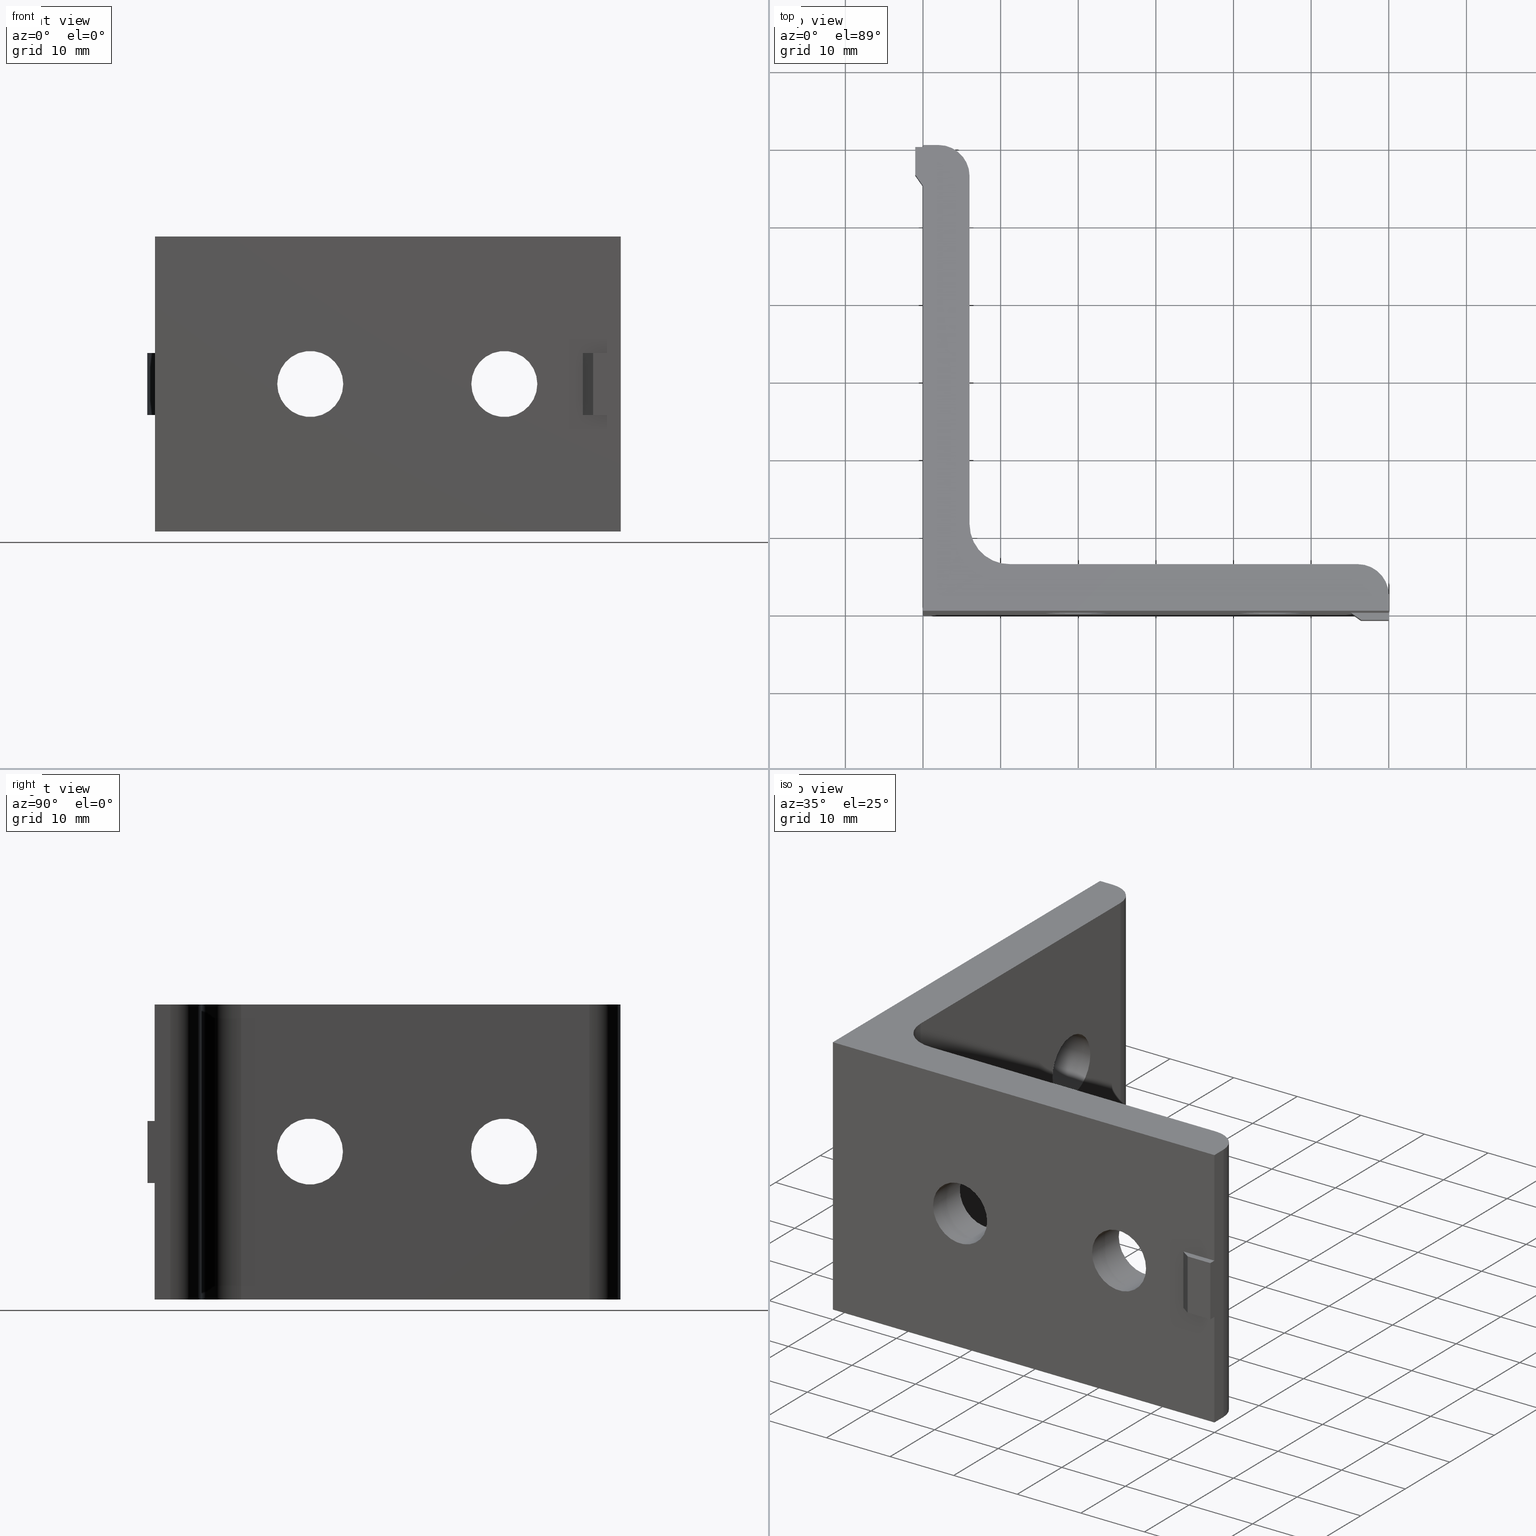
[diagram: canonical four-view strip — front | top / right | iso, engineering-drawing reading convention]
A machine part, canonical four-view strip (front | top / right | iso — engineering-drawing reading convention). The complete STEP part file that produces these views, byte-faithful:
ISO-10303-21;
HEADER;
/****************************************************************
 * Generated by software with PDE/Lib inside                    *
 * PDElib Version v4.4, created Mon 02/23/2004                  *
 * International Technegroup Inc. (www.iti-oh.com)              *
 ****************************************************************/
FILE_DESCRIPTION(('STEP AP203'),'2;1');
FILE_NAME('30.013.00.stp','2011-03-21T16:13:56',(''),(''),'2009.3.110','THINKDESIGN','');
FILE_SCHEMA(('CONFIG_CONTROL_DESIGN'));
ENDSEC;
DATA;
#2=CARTESIAN_POINT('',(55.111601995001365,0.0,-18.999991966924856));
#3=DIRECTION('',(-0.572230295034357,-0.820092976097767,0.0));
#4=DIRECTION('',(0.820092976097767,-0.572230295034357,0.0));
#5=AXIS2_PLACEMENT_3D('',#2,#3,#4);
#6=PLANE('',#5);
#7=CARTESIAN_POINT('',(55.111601995001365,0.0,-3.999991966924856));
#8=VERTEX_POINT('',#7);
#9=CARTESIAN_POINT('',(55.111601995001365,0.0,3.999991966924856));
#10=VERTEX_POINT('',#9);
#11=CARTESIAN_POINT('',(55.111601995001365,0.0,-3.999991966924856));
#12=DIRECTION('',(0.0,0.0,1.0));
#13=VECTOR('',#12,7.999983933849713);
#14=LINE('',#11,#13);
#15=EDGE_CURVE('',#8,#10,#14,.T.);
#16=ORIENTED_EDGE('',*,*,#15,.F.);
#17=CARTESIAN_POINT('',(56.433131091612267,-0.922113719896061,-3.999991966924856));
#18=VERTEX_POINT('',#17);
#19=CARTESIAN_POINT('',(55.111601995001365,0.0,-3.999991966924856));
#20=DIRECTION('',(0.820092976097767,-0.572230295034357,0.0));
#21=VECTOR('',#20,1.611438135830779);
#22=LINE('',#19,#21);
#23=EDGE_CURVE('',#8,#18,#22,.T.);
#24=ORIENTED_EDGE('',*,*,#23,.T.);
#25=CARTESIAN_POINT('',(56.433131091612267,-0.922113719896061,3.999991966924856));
#26=VERTEX_POINT('',#25);
#27=CARTESIAN_POINT('',(56.433131091612267,-0.922113719896061,-3.999991966924856));
#28=DIRECTION('',(0.0,0.0,1.0));
#29=VECTOR('',#28,7.999983933849713);
#30=LINE('',#27,#29);
#31=EDGE_CURVE('',#18,#26,#30,.T.);
#32=ORIENTED_EDGE('',*,*,#31,.T.);
#33=CARTESIAN_POINT('',(55.111601995001365,0.0,3.999991966924856));
#34=DIRECTION('',(0.820092976097767,-0.572230295034357,0.0));
#35=VECTOR('',#34,1.611438135830779);
#36=LINE('',#33,#35);
#37=EDGE_CURVE('',#10,#26,#36,.T.);
#38=ORIENTED_EDGE('',*,*,#37,.F.);
#39=EDGE_LOOP('',(#16,#24,#32,#38));
#40=FACE_OUTER_BOUND('',#39,.T.);
#41=ADVANCED_FACE('',(#40),#6,.T.);
#42=CARTESIAN_POINT('',(56.433131091612267,-0.922113719896061,-18.999991966924856));
#43=DIRECTION('',(0.0,-1.0,0.0));
#44=DIRECTION('',(1.0,0.0,0.0));
#45=AXIS2_PLACEMENT_3D('',#42,#43,#44);
#46=PLANE('',#45);
#47=ORIENTED_EDGE('',*,*,#31,.F.);
#48=CARTESIAN_POINT('',(59.999989242192896,-0.922113719896061,-3.999991966924856));
#49=VERTEX_POINT('',#48);
#50=CARTESIAN_POINT('',(56.433131091612267,-0.922113719896061,-3.999991966924856));
#51=DIRECTION('',(1.0,0.0,0.0));
#52=VECTOR('',#51,3.566858150580629);
#53=LINE('',#50,#52);
#54=EDGE_CURVE('',#18,#49,#53,.T.);
#55=ORIENTED_EDGE('',*,*,#54,.T.);
#56=CARTESIAN_POINT('',(59.999989242192896,-0.922113719896061,3.999991966924856));
#57=VERTEX_POINT('',#56);
#58=CARTESIAN_POINT('',(59.999989242192896,-0.922113719896061,-3.999991966924856));
#59=DIRECTION('',(0.0,0.0,1.0));
#60=VECTOR('',#59,7.999983933849713);
#61=LINE('',#58,#60);
#62=EDGE_CURVE('',#49,#57,#61,.T.);
#63=ORIENTED_EDGE('',*,*,#62,.T.);
#64=CARTESIAN_POINT('',(56.433131091612267,-0.922113719896061,3.999991966924856));
#65=DIRECTION('',(1.0,0.0,0.0));
#66=VECTOR('',#65,3.566858150580629);
#67=LINE('',#64,#66);
#68=EDGE_CURVE('',#26,#57,#67,.T.);
#69=ORIENTED_EDGE('',*,*,#68,.F.);
#70=EDGE_LOOP('',(#47,#55,#63,#69));
#71=FACE_OUTER_BOUND('',#70,.T.);
#72=ADVANCED_FACE('',(#71),#46,.T.);
#73=CARTESIAN_POINT('',(59.999989242192896,-0.922113719896061,-18.999991966924856));
#74=DIRECTION('',(1.0,-1.556227E-013,0.0));
#75=DIRECTION('',(1.556227E-013,1.0,0.0));
#76=AXIS2_PLACEMENT_3D('',#73,#74,#75);
#77=PLANE('',#76);
#78=CARTESIAN_POINT('',(59.999989242193351,2.000001343853455,-18.999991966924856));
#79=VERTEX_POINT('',#78);
#80=CARTESIAN_POINT('',(59.999989242193351,2.000001343853455,18.999991966924856));
#81=VERTEX_POINT('',#80);
#82=CARTESIAN_POINT('',(59.999989242193351,2.000001343853455,-18.999991966924856));
#83=DIRECTION('',(0.0,0.0,1.0));
#84=VECTOR('',#83,37.999983933849713);
#85=LINE('',#82,#84);
#86=EDGE_CURVE('',#79,#81,#85,.T.);
#87=ORIENTED_EDGE('',*,*,#86,.T.);
#88=CARTESIAN_POINT('',(59.999989242192896,0.0,18.999991966924856));
#89=VERTEX_POINT('',#88);
#90=CARTESIAN_POINT('',(59.999989242193038,0.0,18.999991966924856));
#91=DIRECTION('',(1.563193E-013,1.0,0.0));
#92=VECTOR('',#91,2.000001343853455);
#93=LINE('',#90,#92);
#94=EDGE_CURVE('',#89,#81,#93,.T.);
#95=ORIENTED_EDGE('',*,*,#94,.F.);
#96=CARTESIAN_POINT('',(59.999989242193351,0.0,3.999991966924856));
#97=VERTEX_POINT('',#96);
#98=CARTESIAN_POINT('',(59.999989242192896,0.0,18.999991966924856));
#99=DIRECTION('',(0.0,0.0,-1.0));
#100=VECTOR('',#99,15.0);
#101=LINE('',#98,#100);
#102=EDGE_CURVE('',#89,#97,#101,.T.);
#103=ORIENTED_EDGE('',*,*,#102,.T.);
#104=CARTESIAN_POINT('',(59.999989242192896,-0.922113719896061,3.999991966924856));
#105=DIRECTION('',(4.931576E-013,1.0,0.0));
#106=VECTOR('',#105,0.922113719896061);
#107=LINE('',#104,#106);
#108=EDGE_CURVE('',#57,#97,#107,.T.);
#109=ORIENTED_EDGE('',*,*,#108,.F.);
#110=ORIENTED_EDGE('',*,*,#62,.F.);
#111=CARTESIAN_POINT('',(59.999989242193351,0.0,-3.999991966924856));
#112=VERTEX_POINT('',#111);
#113=CARTESIAN_POINT('',(59.999989242192896,-0.922113719896061,-3.999991966924856));
#114=DIRECTION('',(4.931576E-013,1.0,0.0));
#115=VECTOR('',#114,0.922113719896061);
#116=LINE('',#113,#115);
#117=EDGE_CURVE('',#49,#112,#116,.T.);
#118=ORIENTED_EDGE('',*,*,#117,.T.);
#119=CARTESIAN_POINT('',(59.999989242192896,0.0,-18.999991966924856));
#120=VERTEX_POINT('',#119);
#121=CARTESIAN_POINT('',(59.999989242192896,0.0,-18.999991966924856));
#122=DIRECTION('',(0.0,0.0,1.0));
#123=VECTOR('',#122,15.0);
#124=LINE('',#121,#123);
#125=EDGE_CURVE('',#120,#112,#124,.T.);
#126=ORIENTED_EDGE('',*,*,#125,.F.);
#127=CARTESIAN_POINT('',(59.999989242193038,0.0,-18.999991966924856));
#128=DIRECTION('',(1.563193E-013,1.0,0.0));
#129=VECTOR('',#128,2.000001343853455);
#130=LINE('',#127,#129);
#131=EDGE_CURVE('',#120,#79,#130,.T.);
#132=ORIENTED_EDGE('',*,*,#131,.T.);
#133=EDGE_LOOP('',(#87,#95,#103,#109,#110,#118,#126,#132));
#134=FACE_OUTER_BOUND('',#133,.T.);
#135=ADVANCED_FACE('',(#134),#77,.T.);
#136=CARTESIAN_POINT('',(55.999990130163496,2.000001343853455,-18.999991966924856));
#137=DIRECTION('',(0.0,0.0,1.0));
#138=DIRECTION('',(1.0,0.0,0.0));
#139=AXIS2_PLACEMENT_3D('',#136,#137,#138);
#140=CYLINDRICAL_SURFACE('',#139,3.999999112029855);
#141=CARTESIAN_POINT('',(55.999990130153947,6.000000455882855,-18.999991966924856));
#142=VERTEX_POINT('',#141);
#143=CARTESIAN_POINT('',(55.999990130163496,2.000001343853455,-18.999991966924856));
#144=DIRECTION('',(0.0,0.0,1.0));
#145=DIRECTION('',(1.0,0.0,0.0));
#146=AXIS2_PLACEMENT_3D('',#143,#144,#145);
#147=CIRCLE('',#146,3.999999112029855);
#148=EDGE_CURVE('',#79,#142,#147,.T.);
#149=ORIENTED_EDGE('',*,*,#148,.T.);
#150=CARTESIAN_POINT('',(55.999990130153947,6.000000455882855,18.999991966924856));
#151=VERTEX_POINT('',#150);
#152=CARTESIAN_POINT('',(55.999990130153947,6.000000455882855,-18.999991966924856));
#153=DIRECTION('',(0.0,0.0,1.0));
#154=VECTOR('',#153,37.999983933849713);
#155=LINE('',#152,#154);
#156=EDGE_CURVE('',#142,#151,#155,.T.);
#157=ORIENTED_EDGE('',*,*,#156,.T.);
#158=CARTESIAN_POINT('',(55.999990130163496,2.000001343853455,18.999991966924856));
#159=DIRECTION('',(0.0,0.0,1.0));
#160=DIRECTION('',(1.0,0.0,0.0));
#161=AXIS2_PLACEMENT_3D('',#158,#159,#160);
#162=CIRCLE('',#161,3.999999112029855);
#163=EDGE_CURVE('',#81,#151,#162,.T.);
#164=ORIENTED_EDGE('',*,*,#163,.F.);
#165=ORIENTED_EDGE('',*,*,#86,.F.);
#166=EDGE_LOOP('',(#149,#157,#164,#165));
#167=FACE_OUTER_BOUND('',#166,.T.);
#168=ADVANCED_FACE('',(#167),#140,.T.);
#169=CARTESIAN_POINT('',(55.999990130153947,6.000000455882855,-18.999991966924856));
#170=DIRECTION('',(0.0,1.0,0.0));
#171=DIRECTION('',(-1.0,0.0,0.0));
#172=AXIS2_PLACEMENT_3D('',#169,#170,#171);
#173=PLANE('',#172);
#174=CARTESIAN_POINT('',(11.266897509197861,6.000000455882855,-18.999991966924856));
#175=VERTEX_POINT('',#174);
#176=CARTESIAN_POINT('',(55.999990130153947,6.000000455882855,-18.999991966924856));
#177=DIRECTION('',(-1.0,0.0,0.0));
#178=VECTOR('',#177,44.733092620956299);
#179=LINE('',#176,#178);
#180=EDGE_CURVE('',#142,#175,#179,.T.);
#181=ORIENTED_EDGE('',*,*,#180,.T.);
#182=CARTESIAN_POINT('',(11.266897509197861,6.000000455882855,18.999991966924856));
#183=VERTEX_POINT('',#182);
#184=CARTESIAN_POINT('',(11.266897509197861,6.000000455882855,-18.999991966924856));
#185=DIRECTION('',(0.0,0.0,1.0));
#186=VECTOR('',#185,37.999983933849713);
#187=LINE('',#184,#186);
#188=EDGE_CURVE('',#175,#183,#187,.T.);
#189=ORIENTED_EDGE('',*,*,#188,.T.);
#190=CARTESIAN_POINT('',(55.999990130153947,6.000000455882855,18.999991966924856));
#191=DIRECTION('',(-1.0,0.0,0.0));
#192=VECTOR('',#191,44.733092620956299);
#193=LINE('',#190,#192);
#194=EDGE_CURVE('',#151,#183,#193,.T.);
#195=ORIENTED_EDGE('',*,*,#194,.F.);
#196=ORIENTED_EDGE('',*,*,#156,.F.);
#197=EDGE_LOOP('',(#181,#189,#195,#196));
#198=FACE_OUTER_BOUND('',#197,.T.);
#199=CARTESIAN_POINT('',(24.250006695034244,6.000000455882855,0.000003814999193));
#200=VERTEX_POINT('',#199);
#201=CARTESIAN_POINT('',(15.750012449666428,6.000000455882855,0.000003814999193));
#202=VERTEX_POINT('',#201);
#203=CARTESIAN_POINT('',(20.000009572350336,6.000000455882855,0.000003814999193));
#204=DIRECTION('',(0.0,-1.0,0.0));
#205=DIRECTION('',(1.0,0.0,0.0));
#206=AXIS2_PLACEMENT_3D('',#203,#204,#205);
#207=CIRCLE('',#206,4.249997122683908);
#208=EDGE_CURVE('',#200,#202,#207,.T.);
#209=ORIENTED_EDGE('',*,*,#208,.T.);
#210=CARTESIAN_POINT('',(20.000009572350336,6.000000455882855,0.000003814999193));
#211=DIRECTION('',(0.0,-1.0,0.0));
#212=DIRECTION('',(1.0,0.0,0.0));
#213=AXIS2_PLACEMENT_3D('',#210,#211,#212);
#214=CIRCLE('',#213,4.249997122683908);
#215=EDGE_CURVE('',#202,#200,#214,.T.);
#216=ORIENTED_EDGE('',*,*,#215,.T.);
#217=EDGE_LOOP('',(#209,#216));
#218=FACE_BOUND('',#217,.T.);
#219=CARTESIAN_POINT('',(49.249999234934421,6.000000455882855,0.000003814999193));
#220=VERTEX_POINT('',#219);
#221=CARTESIAN_POINT('',(40.750004989566605,6.000000455882855,0.000003814999193));
#222=VERTEX_POINT('',#221);
#223=CARTESIAN_POINT('',(45.000002112250513,6.000000455882855,0.000003814999193));
#224=DIRECTION('',(0.0,-1.0,0.0));
#225=DIRECTION('',(1.0,0.0,0.0));
#226=AXIS2_PLACEMENT_3D('',#223,#224,#225);
#227=CIRCLE('',#226,4.249997122683908);
#228=EDGE_CURVE('',#220,#222,#227,.T.);
#229=ORIENTED_EDGE('',*,*,#228,.T.);
#230=CARTESIAN_POINT('',(45.000002112250513,6.000000455882855,0.000003814999193));
#231=DIRECTION('',(0.0,-1.0,0.0));
#232=DIRECTION('',(1.0,0.0,0.0));
#233=AXIS2_PLACEMENT_3D('',#230,#231,#232);
#234=CIRCLE('',#233,4.249997122683908);
#235=EDGE_CURVE('',#222,#220,#234,.T.);
#236=ORIENTED_EDGE('',*,*,#235,.T.);
#237=EDGE_LOOP('',(#229,#236));
#238=FACE_BOUND('',#237,.T.);
#239=ADVANCED_FACE('',(#198,#218,#238),#173,.T.);
#240=CARTESIAN_POINT('',(11.133448814766780,11.131713186279285,-18.999991966924856));
#241=DIRECTION('',(0.0,0.0,-1.0));
#242=DIRECTION('',(0.025995920331921,-0.999662048957595,0.0));
#243=AXIS2_PLACEMENT_3D('',#240,#241,#242);
#244=CYLINDRICAL_SURFACE('',#243,5.133447584358692);
#245=CARTESIAN_POINT('',(6.000001230408088,11.131713186279285,-18.999991966924856));
#246=VERTEX_POINT('',#245);
#247=CARTESIAN_POINT('',(11.133448814766780,11.131713186279285,-18.999991966924856));
#248=DIRECTION('',(0.0,0.0,-1.0));
#249=DIRECTION('',(-1.0,0.0,0.0));
#250=AXIS2_PLACEMENT_3D('',#247,#248,#249);
#251=CIRCLE('',#250,5.133447584358692);
#252=EDGE_CURVE('',#175,#246,#251,.T.);
#253=ORIENTED_EDGE('',*,*,#252,.T.);
#254=CARTESIAN_POINT('',(6.000001230408088,11.131713186279285,18.999991966924856));
#255=VERTEX_POINT('',#254);
#256=CARTESIAN_POINT('',(6.000001230408088,11.131713186279285,-18.999991966924856));
#257=DIRECTION('',(0.0,0.0,1.0));
#258=VECTOR('',#257,37.999983933849713);
#259=LINE('',#256,#258);
#260=EDGE_CURVE('',#246,#255,#259,.T.);
#261=ORIENTED_EDGE('',*,*,#260,.T.);
#262=CARTESIAN_POINT('',(11.133448814766780,11.131713186279285,18.999991966924856));
#263=DIRECTION('',(0.0,0.0,-1.0));
#264=DIRECTION('',(-1.0,0.0,0.0));
#265=AXIS2_PLACEMENT_3D('',#262,#263,#264);
#266=CIRCLE('',#265,5.133447584358692);
#267=EDGE_CURVE('',#183,#255,#266,.T.);
#268=ORIENTED_EDGE('',*,*,#267,.F.);
#269=ORIENTED_EDGE('',*,*,#188,.F.);
#270=EDGE_LOOP('',(#253,#261,#268,#269));
#271=FACE_OUTER_BOUND('',#270,.T.);
#272=ADVANCED_FACE('',(#271),#244,.F.);
#273=CARTESIAN_POINT('',(6.000001230408088,11.131713186279285,-18.999991966924856));
#274=DIRECTION('',(1.0,0.0,0.0));
#275=DIRECTION('',(0.0,1.0,0.0));
#276=AXIS2_PLACEMENT_3D('',#273,#274,#275);
#277=PLANE('',#276);
#278=CARTESIAN_POINT('',(6.000001230408543,55.999989355737398,-18.999991966924856));
#279=VERTEX_POINT('',#278);
#280=CARTESIAN_POINT('',(6.000001230408088,11.131713186279285,-18.999991966924856));
#281=DIRECTION('',(0.0,1.0,0.0));
#282=VECTOR('',#281,44.868276169458113);
#283=LINE('',#280,#282);
#284=EDGE_CURVE('',#246,#279,#283,.T.);
#285=ORIENTED_EDGE('',*,*,#284,.T.);
#286=CARTESIAN_POINT('',(6.000001230408543,55.999989355737398,18.999991966924856));
#287=VERTEX_POINT('',#286);
#288=CARTESIAN_POINT('',(6.000001230408543,55.999989355737398,-18.999991966924856));
#289=DIRECTION('',(0.0,0.0,1.0));
#290=VECTOR('',#289,37.999983933849713);
#291=LINE('',#288,#290);
#292=EDGE_CURVE('',#279,#287,#291,.T.);
#293=ORIENTED_EDGE('',*,*,#292,.T.);
#294=CARTESIAN_POINT('',(6.000001230408088,11.131713186279285,18.999991966924856));
#295=DIRECTION('',(0.0,1.0,0.0));
#296=VECTOR('',#295,44.868276169458113);
#297=LINE('',#294,#296);
#298=EDGE_CURVE('',#255,#287,#297,.T.);
#299=ORIENTED_EDGE('',*,*,#298,.F.);
#300=ORIENTED_EDGE('',*,*,#260,.F.);
#301=EDGE_LOOP('',(#285,#293,#299,#300));
#302=FACE_OUTER_BOUND('',#301,.T.);
#303=CARTESIAN_POINT('',(6.000001230408543,40.749994675097241,0.055967317574844));
#304=VERTEX_POINT('',#303);
#305=CARTESIAN_POINT('',(6.000001230408543,49.249988920465057,0.055967317574844));
#306=VERTEX_POINT('',#305);
#307=CARTESIAN_POINT('',(6.000001230408543,44.999991797781149,0.055967317574844));
#308=DIRECTION('',(-1.0,0.0,0.0));
#309=DIRECTION('',(0.0,-1.0,0.0));
#310=AXIS2_PLACEMENT_3D('',#307,#308,#309);
#311=CIRCLE('',#310,4.249997122683908);
#312=EDGE_CURVE('',#304,#306,#311,.T.);
#313=ORIENTED_EDGE('',*,*,#312,.T.);
#314=CARTESIAN_POINT('',(6.000001230408543,44.999991797781149,0.055967317574844));
#315=DIRECTION('',(-1.0,0.0,0.0));
#316=DIRECTION('',(0.0,-1.0,0.0));
#317=AXIS2_PLACEMENT_3D('',#314,#315,#316);
#318=CIRCLE('',#317,4.249997122683908);
#319=EDGE_CURVE('',#306,#304,#318,.T.);
#320=ORIENTED_EDGE('',*,*,#319,.T.);
#321=EDGE_LOOP('',(#313,#320));
#322=FACE_BOUND('',#321,.T.);
#323=CARTESIAN_POINT('',(6.000001230408088,15.750000225197255,0.055967317574844));
#324=VERTEX_POINT('',#323);
#325=CARTESIAN_POINT('',(6.000001230408088,24.249994470565071,0.055967317574844));
#326=VERTEX_POINT('',#325);
#327=CARTESIAN_POINT('',(6.000001230408088,19.999997347881163,0.055967317574844));
#328=DIRECTION('',(-1.0,0.0,0.0));
#329=DIRECTION('',(0.0,-1.0,0.0));
#330=AXIS2_PLACEMENT_3D('',#327,#328,#329);
#331=CIRCLE('',#330,4.249997122683908);
#332=EDGE_CURVE('',#324,#326,#331,.T.);
#333=ORIENTED_EDGE('',*,*,#332,.T.);
#334=CARTESIAN_POINT('',(6.000001230408088,19.999997347881163,0.055967317574844));
#335=DIRECTION('',(-1.0,0.0,0.0));
#336=DIRECTION('',(0.0,-1.0,0.0));
#337=AXIS2_PLACEMENT_3D('',#334,#335,#336);
#338=CIRCLE('',#337,4.249997122683908);
#339=EDGE_CURVE('',#326,#324,#338,.T.);
#340=ORIENTED_EDGE('',*,*,#339,.T.);
#341=EDGE_LOOP('',(#333,#340));
#342=FACE_BOUND('',#341,.T.);
#343=ADVANCED_FACE('',(#302,#322,#342),#277,.T.);
#344=CARTESIAN_POINT('',(2.000002118423254,55.999989355736034,-18.999991966924856));
#345=DIRECTION('',(0.0,0.0,1.0));
#346=DIRECTION('',(1.0,0.0,0.0));
#347=AXIS2_PLACEMENT_3D('',#344,#345,#346);
#348=CYLINDRICAL_SURFACE('',#347,3.999999111985138);
#349=CARTESIAN_POINT('',(2.000002118424618,59.999988467721323,-18.999991966924856));
#350=VERTEX_POINT('',#349);
#351=CARTESIAN_POINT('',(2.000002118423254,55.999989355736034,-18.999991966924856));
#352=DIRECTION('',(0.0,0.0,1.0));
#353=DIRECTION('',(1.0,0.0,0.0));
#354=AXIS2_PLACEMENT_3D('',#351,#352,#353);
#355=CIRCLE('',#354,3.999999111985138);
#356=EDGE_CURVE('',#279,#350,#355,.T.);
#357=ORIENTED_EDGE('',*,*,#356,.T.);
#358=CARTESIAN_POINT('',(2.000002118424618,59.999988467721323,18.999991966924856));
#359=VERTEX_POINT('',#358);
#360=CARTESIAN_POINT('',(2.000002118424618,59.999988467721323,-18.999991966924856));
#361=DIRECTION('',(0.0,0.0,1.0));
#362=VECTOR('',#361,37.999983933849713);
#363=LINE('',#360,#362);
#364=EDGE_CURVE('',#350,#359,#363,.T.);
#365=ORIENTED_EDGE('',*,*,#364,.T.);
#366=CARTESIAN_POINT('',(2.000002118423254,55.999989355736034,18.999991966924856));
#367=DIRECTION('',(0.0,0.0,1.0));
#368=DIRECTION('',(1.0,0.0,0.0));
#369=AXIS2_PLACEMENT_3D('',#366,#367,#368);
#370=CIRCLE('',#369,3.999999111985138);
#371=EDGE_CURVE('',#287,#359,#370,.T.);
#372=ORIENTED_EDGE('',*,*,#371,.F.);
#373=ORIENTED_EDGE('',*,*,#292,.F.);
#374=EDGE_LOOP('',(#357,#365,#372,#373));
#375=FACE_OUTER_BOUND('',#374,.T.);
#376=ADVANCED_FACE('',(#375),#348,.T.);
#377=CARTESIAN_POINT('',(2.000002118424618,59.999988467721323,-18.999991966924856));
#378=DIRECTION('',(0.0,1.0,0.0));
#379=DIRECTION('',(-1.0,0.0,0.0));
#380=AXIS2_PLACEMENT_3D('',#377,#378,#379);
#381=PLANE('',#380);
#382=CARTESIAN_POINT('',(-1.000001025562597,59.999988467721323,3.999991966924856));
#383=VERTEX_POINT('',#382);
#384=CARTESIAN_POINT('',(0.0,59.999988467721323,3.999991966924856));
#385=VERTEX_POINT('',#384);
#386=CARTESIAN_POINT('',(-1.000001025562597,59.999988467721323,3.999991966924856));
#387=DIRECTION('',(1.0,0.0,0.0));
#388=VECTOR('',#387,1.000001025562597);
#389=LINE('',#386,#388);
#390=EDGE_CURVE('',#383,#385,#389,.T.);
#391=ORIENTED_EDGE('',*,*,#390,.T.);
#392=CARTESIAN_POINT('',(0.0,59.999988467721323,18.999991966924856));
#393=VERTEX_POINT('',#392);
#394=CARTESIAN_POINT('',(0.0,59.999988467721323,18.999991966924856));
#395=DIRECTION('',(0.0,0.0,-1.0));
#396=VECTOR('',#395,15.0);
#397=LINE('',#394,#396);
#398=EDGE_CURVE('',#393,#385,#397,.T.);
#399=ORIENTED_EDGE('',*,*,#398,.F.);
#400=CARTESIAN_POINT('',(2.000002118424618,59.999988467721323,18.999991966924856));
#401=DIRECTION('',(-1.0,0.0,0.0));
#402=VECTOR('',#401,2.000002118424618);
#403=LINE('',#400,#402);
#404=EDGE_CURVE('',#359,#393,#403,.T.);
#405=ORIENTED_EDGE('',*,*,#404,.F.);
#406=ORIENTED_EDGE('',*,*,#364,.F.);
#407=CARTESIAN_POINT('',(0.0,59.999988467721323,-18.999991966924856));
#408=VERTEX_POINT('',#407);
#409=CARTESIAN_POINT('',(2.000002118424618,59.999988467721323,-18.999991966924856));
#410=DIRECTION('',(-1.0,0.0,0.0));
#411=VECTOR('',#410,2.000002118424618);
#412=LINE('',#409,#411);
#413=EDGE_CURVE('',#350,#408,#412,.T.);
#414=ORIENTED_EDGE('',*,*,#413,.T.);
#415=CARTESIAN_POINT('',(0.0,59.999988467721323,-3.999991966924860));
#416=VERTEX_POINT('',#415);
#417=CARTESIAN_POINT('',(0.0,59.999988467721323,-18.999991966924856));
#418=DIRECTION('',(0.0,0.0,1.0));
#419=VECTOR('',#418,14.999999999999996);
#420=LINE('',#417,#419);
#421=EDGE_CURVE('',#408,#416,#420,.T.);
#422=ORIENTED_EDGE('',*,*,#421,.T.);
#423=CARTESIAN_POINT('',(-1.000001025562597,59.999988467721323,-3.999991966924862));
#424=VERTEX_POINT('',#423);
#425=CARTESIAN_POINT('',(-1.000001025562597,59.999988467721323,-3.999991966924862));
#426=DIRECTION('',(1.0,0.0,0.0));
#427=VECTOR('',#426,1.000001025562597);
#428=LINE('',#425,#427);
#429=EDGE_CURVE('',#424,#416,#428,.T.);
#430=ORIENTED_EDGE('',*,*,#429,.F.);
#431=CARTESIAN_POINT('',(-1.000001025562597,59.999988467721323,-3.999991966924862));
#432=DIRECTION('',(0.0,0.0,1.0));
#433=VECTOR('',#432,7.999983933849718);
#434=LINE('',#431,#433);
#435=EDGE_CURVE('',#424,#383,#434,.T.);
#436=ORIENTED_EDGE('',*,*,#435,.T.);
#437=EDGE_LOOP('',(#391,#399,#405,#406,#414,#422,#430,#436));
#438=FACE_OUTER_BOUND('',#437,.T.);
#439=ADVANCED_FACE('',(#438),#381,.T.);
#440=CARTESIAN_POINT('',(-1.000001025562597,59.999988467721323,-18.999991966924856));
#441=DIRECTION('',(-1.0,0.0,0.0));
#442=DIRECTION('',(0.0,-1.0,0.0));
#443=AXIS2_PLACEMENT_3D('',#440,#441,#442);
#444=PLANE('',#443);
#445=ORIENTED_EDGE('',*,*,#435,.F.);
#446=CARTESIAN_POINT('',(-1.000001025562597,56.433132879577443,-3.999991966924862));
#447=VERTEX_POINT('',#446);
#448=CARTESIAN_POINT('',(-1.000001025562597,59.999988467721323,-3.999991966924862));
#449=DIRECTION('',(0.0,-1.0,0.0));
#450=VECTOR('',#449,3.566855588143881);
#451=LINE('',#448,#450);
#452=EDGE_CURVE('',#424,#447,#451,.T.);
#453=ORIENTED_EDGE('',*,*,#452,.T.);
#454=CARTESIAN_POINT('',(-1.000001025562597,56.433132879577443,3.999991966924856));
#455=VERTEX_POINT('',#454);
#456=CARTESIAN_POINT('',(-1.000001025562597,56.433132879577443,-3.999991966924862));
#457=DIRECTION('',(0.0,0.0,1.0));
#458=VECTOR('',#457,7.999983933849718);
#459=LINE('',#456,#458);
#460=EDGE_CURVE('',#447,#455,#459,.T.);
#461=ORIENTED_EDGE('',*,*,#460,.T.);
#462=CARTESIAN_POINT('',(-1.000001025562597,59.999988467721323,3.999991966924856));
#463=DIRECTION('',(0.0,-1.0,0.0));
#464=VECTOR('',#463,3.566855588143881);
#465=LINE('',#462,#464);
#466=EDGE_CURVE('',#383,#455,#465,.T.);
#467=ORIENTED_EDGE('',*,*,#466,.F.);
#468=EDGE_LOOP('',(#445,#453,#461,#467));
#469=FACE_OUTER_BOUND('',#468,.T.);
#470=ADVANCED_FACE('',(#469),#444,.T.);
#471=CARTESIAN_POINT('',(-1.000001025562597,56.433132879577443,-18.999991966924856));
#472=DIRECTION('',(-0.820094270372177,-0.572228440137963,0.0));
#473=DIRECTION('',(0.572228440137963,-0.820094270372177,0.0));
#474=AXIS2_PLACEMENT_3D('',#471,#472,#473);
#475=PLANE('',#474);
#476=CARTESIAN_POINT('',(0.0,54.999972529783463,3.999991966924856));
#477=VERTEX_POINT('',#476);
#478=CARTESIAN_POINT('',(0.0,54.999972529783463,3.999991966924856));
#479=DIRECTION('',(-0.572228440137963,0.820094270372177,0.0));
#480=VECTOR('',#479,1.747555618384676);
#481=LINE('',#478,#480);
#482=EDGE_CURVE('',#477,#455,#481,.T.);
#483=ORIENTED_EDGE('',*,*,#482,.T.);
#484=ORIENTED_EDGE('',*,*,#460,.F.);
#485=CARTESIAN_POINT('',(0.0,54.999972529783463,-3.999991966924862));
#486=VERTEX_POINT('',#485);
#487=CARTESIAN_POINT('',(0.0,54.999972529783463,-3.999991966924862));
#488=DIRECTION('',(-0.572228440137963,0.820094270372177,0.0));
#489=VECTOR('',#488,1.747555618384676);
#490=LINE('',#487,#489);
#491=EDGE_CURVE('',#486,#447,#490,.T.);
#492=ORIENTED_EDGE('',*,*,#491,.F.);
#493=CARTESIAN_POINT('',(0.0,54.999972529783463,-3.999991966924862));
#494=DIRECTION('',(0.0,0.0,1.0));
#495=VECTOR('',#494,7.999983933849718);
#496=LINE('',#493,#495);
#497=EDGE_CURVE('',#486,#477,#496,.T.);
#498=ORIENTED_EDGE('',*,*,#497,.T.);
#499=EDGE_LOOP('',(#483,#484,#492,#498));
#500=FACE_OUTER_BOUND('',#499,.T.);
#501=ADVANCED_FACE('',(#500),#475,.T.);
#502=CARTESIAN_POINT('',(-7.100004785434066,-7.014328671890780,-18.999991966924856));
#503=DIRECTION('',(0.0,0.0,1.0));
#504=DIRECTION('',(1.0,0.0,0.0));
#505=AXIS2_PLACEMENT_3D('',#502,#503,#504);
#506=PLANE('',#505);
#507=ORIENTED_EDGE('',*,*,#131,.F.);
#508=CARTESIAN_POINT('',(0.0,0.0,-18.999991966924856));
#509=VERTEX_POINT('',#508);
#510=CARTESIAN_POINT('',(0.0,0.0,-18.999991966924856));
#511=DIRECTION('',(1.0,0.0,0.0));
#512=VECTOR('',#511,59.999989242192896);
#513=LINE('',#510,#512);
#514=EDGE_CURVE('',#509,#120,#513,.T.);
#515=ORIENTED_EDGE('',*,*,#514,.F.);
#516=CARTESIAN_POINT('',(0.0,0.0,-18.999991966924856));
#517=DIRECTION('',(0.0,1.0,0.0));
#518=VECTOR('',#517,59.999988467721323);
#519=LINE('',#516,#518);
#520=EDGE_CURVE('',#509,#408,#519,.T.);
#521=ORIENTED_EDGE('',*,*,#520,.T.);
#522=ORIENTED_EDGE('',*,*,#413,.F.);
#523=ORIENTED_EDGE('',*,*,#356,.F.);
#524=ORIENTED_EDGE('',*,*,#284,.F.);
#525=ORIENTED_EDGE('',*,*,#252,.F.);
#526=ORIENTED_EDGE('',*,*,#180,.F.);
#527=ORIENTED_EDGE('',*,*,#148,.F.);
#528=EDGE_LOOP('',(#507,#515,#521,#522,#523,#524,#525,#526,#527));
#529=FACE_OUTER_BOUND('',#528,.T.);
#530=ADVANCED_FACE('',(#529),#506,.F.);
#531=CARTESIAN_POINT('',(-7.100004785434066,-7.014328671890780,18.999991966924856));
#532=DIRECTION('',(0.0,0.0,1.0));
#533=DIRECTION('',(1.0,0.0,0.0));
#534=AXIS2_PLACEMENT_3D('',#531,#532,#533);
#535=PLANE('',#534);
#536=ORIENTED_EDGE('',*,*,#163,.T.);
#537=ORIENTED_EDGE('',*,*,#194,.T.);
#538=ORIENTED_EDGE('',*,*,#267,.T.);
#539=ORIENTED_EDGE('',*,*,#298,.T.);
#540=ORIENTED_EDGE('',*,*,#371,.T.);
#541=ORIENTED_EDGE('',*,*,#404,.T.);
#542=CARTESIAN_POINT('',(0.0,0.0,18.999991966924856));
#543=VERTEX_POINT('',#542);
#544=CARTESIAN_POINT('',(0.0,0.0,18.999991966924856));
#545=DIRECTION('',(0.0,1.0,0.0));
#546=VECTOR('',#545,59.999988467721323);
#547=LINE('',#544,#546);
#548=EDGE_CURVE('',#543,#393,#547,.T.);
#549=ORIENTED_EDGE('',*,*,#548,.F.);
#550=CARTESIAN_POINT('',(0.0,0.0,18.999991966924856));
#551=DIRECTION('',(1.0,0.0,0.0));
#552=VECTOR('',#551,59.999989242192896);
#553=LINE('',#550,#552);
#554=EDGE_CURVE('',#543,#89,#553,.T.);
#555=ORIENTED_EDGE('',*,*,#554,.T.);
#556=ORIENTED_EDGE('',*,*,#94,.T.);
#557=EDGE_LOOP('',(#536,#537,#538,#539,#540,#541,#549,#555,#556));
#558=FACE_OUTER_BOUND('',#557,.T.);
#559=ADVANCED_FACE('',(#558),#535,.T.);
#560=CARTESIAN_POINT('',(0.0,83.077882852675430,3.999991966924856));
#561=DIRECTION('',(0.0,0.0,-1.0));
#562=DIRECTION('',(0.0,-1.0,0.0));
#563=AXIS2_PLACEMENT_3D('',#560,#561,#562);
#564=PLANE('',#563);
#565=CARTESIAN_POINT('',(0.0,59.999988467721323,3.999991966924856));
#566=DIRECTION('',(0.0,-1.0,0.0));
#567=VECTOR('',#566,5.000015937937860);
#568=LINE('',#565,#567);
#569=EDGE_CURVE('',#385,#477,#568,.T.);
#570=ORIENTED_EDGE('',*,*,#569,.F.);
#571=ORIENTED_EDGE('',*,*,#390,.F.);
#572=ORIENTED_EDGE('',*,*,#466,.T.);
#573=ORIENTED_EDGE('',*,*,#482,.F.);
#574=EDGE_LOOP('',(#570,#571,#572,#573));
#575=FACE_OUTER_BOUND('',#574,.T.);
#576=ADVANCED_FACE('',(#575),#564,.F.);
#577=CARTESIAN_POINT('',(0.0,0.0,-3.999991966924860));
#578=DIRECTION('',(0.0,0.0,1.0));
#579=DIRECTION('',(0.0,1.0,0.0));
#580=AXIS2_PLACEMENT_3D('',#577,#578,#579);
#581=PLANE('',#580);
#582=ORIENTED_EDGE('',*,*,#491,.T.);
#583=ORIENTED_EDGE('',*,*,#452,.F.);
#584=ORIENTED_EDGE('',*,*,#429,.T.);
#585=CARTESIAN_POINT('',(0.0,54.999972529783463,-3.999991966924860));
#586=DIRECTION('',(0.0,1.0,0.0));
#587=VECTOR('',#586,5.000015937937860);
#588=LINE('',#585,#587);
#589=EDGE_CURVE('',#486,#416,#588,.T.);
#590=ORIENTED_EDGE('',*,*,#589,.F.);
#591=EDGE_LOOP('',(#582,#583,#584,#590));
#592=FACE_OUTER_BOUND('',#591,.T.);
#593=ADVANCED_FACE('',(#592),#581,.F.);
#594=CARTESIAN_POINT('',(0.0,60.003404010696158,-19.003407509899692));
#595=DIRECTION('',(-1.0,0.0,0.0));
#596=DIRECTION('',(0.0,-1.0,0.0));
#597=AXIS2_PLACEMENT_3D('',#594,#595,#596);
#598=PLANE('',#597);
#599=ORIENTED_EDGE('',*,*,#398,.T.);
#600=ORIENTED_EDGE('',*,*,#569,.T.);
#601=ORIENTED_EDGE('',*,*,#497,.F.);
#602=ORIENTED_EDGE('',*,*,#589,.T.);
#603=ORIENTED_EDGE('',*,*,#421,.F.);
#604=ORIENTED_EDGE('',*,*,#520,.F.);
#605=CARTESIAN_POINT('',(0.0,0.0,-18.999991966924856));
#606=DIRECTION('',(0.0,0.0,1.0));
#607=VECTOR('',#606,37.999983933849713);
#608=LINE('',#605,#607);
#609=EDGE_CURVE('',#509,#543,#608,.T.);
#610=ORIENTED_EDGE('',*,*,#609,.T.);
#611=ORIENTED_EDGE('',*,*,#548,.T.);
#612=EDGE_LOOP('',(#599,#600,#601,#602,#603,#604,#610,#611));
#613=FACE_OUTER_BOUND('',#612,.T.);
#614=CARTESIAN_POINT('',(0.0,49.249988920465057,0.055967317574844));
#615=VERTEX_POINT('',#614);
#616=CARTESIAN_POINT('',(0.0,40.749994675097241,0.055967317574844));
#617=VERTEX_POINT('',#616);
#618=CARTESIAN_POINT('',(0.0,44.999991797781149,0.055967317574844));
#619=DIRECTION('',(-1.0,0.0,0.0));
#620=DIRECTION('',(0.0,-1.0,0.0));
#621=AXIS2_PLACEMENT_3D('',#618,#619,#620);
#622=CIRCLE('',#621,4.249997122683908);
#623=EDGE_CURVE('',#615,#617,#622,.T.);
#624=ORIENTED_EDGE('',*,*,#623,.F.);
#625=CARTESIAN_POINT('',(0.0,44.999991797781149,0.055967317574844));
#626=DIRECTION('',(-1.0,0.0,0.0));
#627=DIRECTION('',(0.0,-1.0,0.0));
#628=AXIS2_PLACEMENT_3D('',#625,#626,#627);
#629=CIRCLE('',#628,4.249997122683908);
#630=EDGE_CURVE('',#617,#615,#629,.T.);
#631=ORIENTED_EDGE('',*,*,#630,.F.);
#632=EDGE_LOOP('',(#624,#631));
#633=FACE_BOUND('',#632,.T.);
#634=CARTESIAN_POINT('',(0.0,24.249994470565071,0.055967317574844));
#635=VERTEX_POINT('',#634);
#636=CARTESIAN_POINT('',(0.0,15.750000225197255,0.055967317574844));
#637=VERTEX_POINT('',#636);
#638=CARTESIAN_POINT('',(0.0,19.999997347881163,0.055967317574844));
#639=DIRECTION('',(-1.0,0.0,0.0));
#640=DIRECTION('',(0.0,-1.0,0.0));
#641=AXIS2_PLACEMENT_3D('',#638,#639,#640);
#642=CIRCLE('',#641,4.249997122683908);
#643=EDGE_CURVE('',#635,#637,#642,.T.);
#644=ORIENTED_EDGE('',*,*,#643,.F.);
#645=CARTESIAN_POINT('',(0.0,19.999997347881163,0.055967317574844));
#646=DIRECTION('',(-1.0,0.0,0.0));
#647=DIRECTION('',(0.0,-1.0,0.0));
#648=AXIS2_PLACEMENT_3D('',#645,#646,#647);
#649=CIRCLE('',#648,4.249997122683908);
#650=EDGE_CURVE('',#637,#635,#649,.T.);
#651=ORIENTED_EDGE('',*,*,#650,.F.);
#652=EDGE_LOOP('',(#644,#651));
#653=FACE_BOUND('',#652,.T.);
#654=ADVANCED_FACE('',(#613,#633,#653),#598,.T.);
#655=CARTESIAN_POINT('',(20.000009572350336,0.0,0.000003814999193));
#656=DIRECTION('',(0.0,-1.0,0.0));
#657=DIRECTION('',(1.0,0.0,0.0));
#658=AXIS2_PLACEMENT_3D('',#655,#656,#657);
#659=CYLINDRICAL_SURFACE('',#658,4.249997122683908);
#660=CARTESIAN_POINT('',(24.250006695034244,0.0,0.000003814999193));
#661=VERTEX_POINT('',#660);
#662=CARTESIAN_POINT('',(24.250006695034244,0.0,0.000003814999193));
#663=DIRECTION('',(0.0,1.0,0.0));
#664=VECTOR('',#663,6.000000455882855);
#665=LINE('',#662,#664);
#666=EDGE_CURVE('',#661,#200,#665,.T.);
#667=ORIENTED_EDGE('',*,*,#666,.T.);
#668=ORIENTED_EDGE('',*,*,#215,.F.);
#669=ORIENTED_EDGE('',*,*,#208,.F.);
#670=ORIENTED_EDGE('',*,*,#666,.F.);
#671=CARTESIAN_POINT('',(15.750012449666428,0.0,0.000003814999193));
#672=VERTEX_POINT('',#671);
#673=CARTESIAN_POINT('',(20.000009572350336,0.0,0.000003814999193));
#674=DIRECTION('',(0.0,-1.0,0.0));
#675=DIRECTION('',(1.0,0.0,0.0));
#676=AXIS2_PLACEMENT_3D('',#673,#674,#675);
#677=CIRCLE('',#676,4.249997122683908);
#678=EDGE_CURVE('',#661,#672,#677,.T.);
#679=ORIENTED_EDGE('',*,*,#678,.T.);
#680=CARTESIAN_POINT('',(20.000009572350336,0.0,0.000003814999193));
#681=DIRECTION('',(0.0,-1.0,0.0));
#682=DIRECTION('',(1.0,0.0,0.0));
#683=AXIS2_PLACEMENT_3D('',#680,#681,#682);
#684=CIRCLE('',#683,4.249997122683908);
#685=EDGE_CURVE('',#672,#661,#684,.T.);
#686=ORIENTED_EDGE('',*,*,#685,.T.);
#687=EDGE_LOOP('',(#667,#668,#669,#670,#679,#686));
#688=FACE_OUTER_BOUND('',#687,.T.);
#689=ADVANCED_FACE('',(#688),#659,.F.);
#690=CARTESIAN_POINT('',(45.000002112250513,0.0,0.000003814999193));
#691=DIRECTION('',(0.0,-1.0,0.0));
#692=DIRECTION('',(1.0,0.0,0.0));
#693=AXIS2_PLACEMENT_3D('',#690,#691,#692);
#694=CYLINDRICAL_SURFACE('',#693,4.249997122683908);
#695=CARTESIAN_POINT('',(49.249999234934421,0.0,0.000003814999193));
#696=VERTEX_POINT('',#695);
#697=CARTESIAN_POINT('',(49.249999234934421,0.0,0.000003814999193));
#698=DIRECTION('',(0.0,1.0,0.0));
#699=VECTOR('',#698,6.000000455882855);
#700=LINE('',#697,#699);
#701=EDGE_CURVE('',#696,#220,#700,.T.);
#702=ORIENTED_EDGE('',*,*,#701,.T.);
#703=ORIENTED_EDGE('',*,*,#235,.F.);
#704=ORIENTED_EDGE('',*,*,#228,.F.);
#705=ORIENTED_EDGE('',*,*,#701,.F.);
#706=CARTESIAN_POINT('',(40.750004989566605,0.0,0.000003814999193));
#707=VERTEX_POINT('',#706);
#708=CARTESIAN_POINT('',(45.000002112250513,0.0,0.000003814999193));
#709=DIRECTION('',(0.0,-1.0,0.0));
#710=DIRECTION('',(1.0,0.0,0.0));
#711=AXIS2_PLACEMENT_3D('',#708,#709,#710);
#712=CIRCLE('',#711,4.249997122683908);
#713=EDGE_CURVE('',#696,#707,#712,.T.);
#714=ORIENTED_EDGE('',*,*,#713,.T.);
#715=CARTESIAN_POINT('',(45.000002112250513,0.0,0.000003814999193));
#716=DIRECTION('',(0.0,-1.0,0.0));
#717=DIRECTION('',(1.0,0.0,0.0));
#718=AXIS2_PLACEMENT_3D('',#715,#716,#717);
#719=CIRCLE('',#718,4.249997122683908);
#720=EDGE_CURVE('',#707,#696,#719,.T.);
#721=ORIENTED_EDGE('',*,*,#720,.T.);
#722=EDGE_LOOP('',(#702,#703,#704,#705,#714,#721));
#723=FACE_OUTER_BOUND('',#722,.T.);
#724=ADVANCED_FACE('',(#723),#694,.F.);
#725=CARTESIAN_POINT('',(0.0,44.999991797781149,0.055967317574844));
#726=DIRECTION('',(-1.0,0.0,0.0));
#727=DIRECTION('',(0.0,-1.0,0.0));
#728=AXIS2_PLACEMENT_3D('',#725,#726,#727);
#729=CYLINDRICAL_SURFACE('',#728,4.249997122683908);
#730=CARTESIAN_POINT('',(0.0,40.749994675097241,0.055967317574844));
#731=DIRECTION('',(1.0,0.0,0.0));
#732=VECTOR('',#731,6.000001230408543);
#733=LINE('',#730,#732);
#734=EDGE_CURVE('',#617,#304,#733,.T.);
#735=ORIENTED_EDGE('',*,*,#734,.T.);
#736=ORIENTED_EDGE('',*,*,#319,.F.);
#737=ORIENTED_EDGE('',*,*,#312,.F.);
#738=ORIENTED_EDGE('',*,*,#734,.F.);
#739=ORIENTED_EDGE('',*,*,#630,.T.);
#740=ORIENTED_EDGE('',*,*,#623,.T.);
#741=EDGE_LOOP('',(#735,#736,#737,#738,#739,#740));
#742=FACE_OUTER_BOUND('',#741,.T.);
#743=ADVANCED_FACE('',(#742),#729,.F.);
#744=CARTESIAN_POINT('',(0.0,19.999997347881163,0.055967317574844));
#745=DIRECTION('',(-1.0,0.0,0.0));
#746=DIRECTION('',(0.0,-1.0,0.0));
#747=AXIS2_PLACEMENT_3D('',#744,#745,#746);
#748=CYLINDRICAL_SURFACE('',#747,4.249997122683908);
#749=CARTESIAN_POINT('',(0.0,15.750000225197255,0.055967317574844));
#750=DIRECTION('',(1.0,0.0,0.0));
#751=VECTOR('',#750,6.000001230408088);
#752=LINE('',#749,#751);
#753=EDGE_CURVE('',#637,#324,#752,.T.);
#754=ORIENTED_EDGE('',*,*,#753,.T.);
#755=ORIENTED_EDGE('',*,*,#339,.F.);
#756=ORIENTED_EDGE('',*,*,#332,.F.);
#757=ORIENTED_EDGE('',*,*,#753,.F.);
#758=ORIENTED_EDGE('',*,*,#650,.T.);
#759=ORIENTED_EDGE('',*,*,#643,.T.);
#760=EDGE_LOOP('',(#754,#755,#756,#757,#758,#759));
#761=FACE_OUTER_BOUND('',#760,.T.);
#762=ADVANCED_FACE('',(#761),#748,.F.);
#763=CARTESIAN_POINT('',(0.000014012430256,0.0,3.999991966924856));
#764=DIRECTION('',(0.0,0.0,-1.0));
#765=DIRECTION('',(1.0,0.0,0.0));
#766=AXIS2_PLACEMENT_3D('',#763,#764,#765);
#767=PLANE('',#766);
#768=ORIENTED_EDGE('',*,*,#37,.T.);
#769=ORIENTED_EDGE('',*,*,#68,.T.);
#770=ORIENTED_EDGE('',*,*,#108,.T.);
#771=CARTESIAN_POINT('',(55.111601995001365,0.0,3.999991966924856));
#772=DIRECTION('',(1.0,0.0,0.0));
#773=VECTOR('',#772,4.888387247191986);
#774=LINE('',#771,#773);
#775=EDGE_CURVE('',#10,#97,#774,.T.);
#776=ORIENTED_EDGE('',*,*,#775,.F.);
#777=EDGE_LOOP('',(#768,#769,#770,#776));
#778=FACE_OUTER_BOUND('',#777,.T.);
#779=ADVANCED_FACE('',(#778),#767,.F.);
#780=CARTESIAN_POINT('',(86.0,0.0,-3.999991966924856));
#781=DIRECTION('',(0.0,0.0,1.0));
#782=DIRECTION('',(-1.0,0.0,0.0));
#783=AXIS2_PLACEMENT_3D('',#780,#781,#782);
#784=PLANE('',#783);
#785=CARTESIAN_POINT('',(59.999989242193351,0.0,-3.999991966924856));
#786=DIRECTION('',(-1.0,0.0,0.0));
#787=VECTOR('',#786,4.888387247191986);
#788=LINE('',#785,#787);
#789=EDGE_CURVE('',#112,#8,#788,.T.);
#790=ORIENTED_EDGE('',*,*,#789,.F.);
#791=ORIENTED_EDGE('',*,*,#117,.F.);
#792=ORIENTED_EDGE('',*,*,#54,.F.);
#793=ORIENTED_EDGE('',*,*,#23,.F.);
#794=EDGE_LOOP('',(#790,#791,#792,#793));
#795=FACE_OUTER_BOUND('',#794,.T.);
#796=ADVANCED_FACE('',(#795),#784,.F.);
#797=CARTESIAN_POINT('',(-0.025557786335412,0.0,-19.026107115340412));
#798=DIRECTION('',(0.0,-1.0,0.0));
#799=DIRECTION('',(1.0,0.0,0.0));
#800=AXIS2_PLACEMENT_3D('',#797,#798,#799);
#801=PLANE('',#800);
#802=ORIENTED_EDGE('',*,*,#775,.T.);
#803=ORIENTED_EDGE('',*,*,#102,.F.);
#804=ORIENTED_EDGE('',*,*,#554,.F.);
#805=ORIENTED_EDGE('',*,*,#609,.F.);
#806=ORIENTED_EDGE('',*,*,#514,.T.);
#807=ORIENTED_EDGE('',*,*,#125,.T.);
#808=ORIENTED_EDGE('',*,*,#789,.T.);
#809=ORIENTED_EDGE('',*,*,#15,.T.);
#810=EDGE_LOOP('',(#802,#803,#804,#805,#806,#807,#808,#809));
#811=FACE_OUTER_BOUND('',#810,.T.);
#812=ORIENTED_EDGE('',*,*,#685,.F.);
#813=ORIENTED_EDGE('',*,*,#678,.F.);
#814=EDGE_LOOP('',(#812,#813));
#815=FACE_BOUND('',#814,.T.);
#816=ORIENTED_EDGE('',*,*,#720,.F.);
#817=ORIENTED_EDGE('',*,*,#713,.F.);
#818=EDGE_LOOP('',(#816,#817));
#819=FACE_BOUND('',#818,.T.);
#820=ADVANCED_FACE('',(#811,#815,#819),#801,.T.);
#821=CLOSED_SHELL('',(#41,#72,#135,#168,#239,#272,#343,#376,#439,#470,#501,#530,#559,#576,#593,#654,#689,#724,#743,#762,#779,#796,#820));
#822=MANIFOLD_SOLID_BREP('',#821);
#828=(NAMED_UNIT(*)PLANE_ANGLE_UNIT()SI_UNIT($,.RADIAN.));
#829=DIMENSIONAL_EXPONENTS(0.0,0.0,0.0,0.0,0.0,0.0,0.0);
#830=PLANE_ANGLE_MEASURE_WITH_UNIT(PLANE_ANGLE_MEASURE(0.017453292500000),#828);
#834=(CONVERSION_BASED_UNIT('DEGREE',#830)NAMED_UNIT(#829)PLANE_ANGLE_UNIT());
#838=(NAMED_UNIT(*)SI_UNIT($,.STERADIAN.)SOLID_ANGLE_UNIT());
#842=(LENGTH_UNIT()NAMED_UNIT(*)SI_UNIT(.MILLI.,.METRE.));
#844=UNCERTAINTY_MEASURE_WITH_UNIT(LENGTH_MEASURE(0.001000000000000),#842,'DISTANCE_ACCURACY_VALUE','');
#846=(GEOMETRIC_REPRESENTATION_CONTEXT(3)GLOBAL_UNCERTAINTY_ASSIGNED_CONTEXT((#844))GLOBAL_UNIT_ASSIGNED_CONTEXT((#834,#838,#842))REPRESENTATION_CONTEXT('thinkdesign','2009.3.110'));
#847=ADVANCED_BREP_SHAPE_REPRESENTATION('',(#822),#846);
#848=APPLICATION_CONTEXT('configuration controlled 3D designs of mechanical parts and assemblies');
#849=APPLICATION_PROTOCOL_DEFINITION('International Standard','config_control_design',1995,#848);
#850=MECHANICAL_CONTEXT('None',#848,'mechanical');
#851=PRODUCT('None','None','None',(#850));
#852=PRODUCT_RELATED_PRODUCT_CATEGORY('detail',$,(#851));
#853=PRODUCT_CATEGORY('part',$);
#854=PRODUCT_CATEGORY_RELATIONSHIP('None','None',#853,#852);
#855=PERSON('PERSON1','None','None',$,$,$);
#856=ORGANIZATION('','None','None');
#857=PERSON_AND_ORGANIZATION(#855,#856);
#858=PERSON_AND_ORGANIZATION_ROLE('design_owner');
#859=CC_DESIGN_PERSON_AND_ORGANIZATION_ASSIGNMENT(#857,#858,(#851));
#860=PRODUCT_DEFINITION_FORMATION_WITH_SPECIFIED_SOURCE('None','None',#851,.NOT_KNOWN.);
#861=PERSON('PERSON2','None','None',$,$,$);
#862=ORGANIZATION('','None','None');
#863=PERSON_AND_ORGANIZATION(#861,#862);
#864=PERSON_AND_ORGANIZATION_ROLE('creator');
#865=CC_DESIGN_PERSON_AND_ORGANIZATION_ASSIGNMENT(#863,#864,(#860));
#866=PERSON('PERSON3','None','None',$,$,$);
#867=ORGANIZATION('','None','None');
#868=PERSON_AND_ORGANIZATION(#866,#867);
#869=PERSON_AND_ORGANIZATION_ROLE('part_supplier');
#870=CC_DESIGN_PERSON_AND_ORGANIZATION_ASSIGNMENT(#868,#869,(#860));
#871=APPROVAL_STATUS('approved');
#872=APPROVAL(#871,'None');
#873=PERSON('PERSON4','None','None',$,$,$);
#874=ORGANIZATION('','None','None');
#875=PERSON_AND_ORGANIZATION(#873,#874);
#876=APPROVAL_ROLE('None');
#877=APPROVAL_PERSON_ORGANIZATION(#875,#872,#876);
#878=CALENDAR_DATE(2011,21,3);
#879=COORDINATED_UNIVERSAL_TIME_OFFSET(0,0,.AHEAD.);
#880=LOCAL_TIME(16,13,56.0,#879);
#881=DATE_AND_TIME(#878,#880);
#882=APPROVAL_DATE_TIME(#881,#872);
#883=CC_DESIGN_APPROVAL(#872,(#860));
#884=SECURITY_CLASSIFICATION_LEVEL('unclassified');
#885=SECURITY_CLASSIFICATION('None','None',#884);
#886=CC_DESIGN_SECURITY_CLASSIFICATION(#885,(#860));
#887=APPROVAL_STATUS('approved');
#888=APPROVAL(#887,'None');
#889=PERSON('PERSON5','None','None',$,$,$);
#890=ORGANIZATION('','None','None');
#891=PERSON_AND_ORGANIZATION(#889,#890);
#892=APPROVAL_ROLE('None');
#893=APPROVAL_PERSON_ORGANIZATION(#891,#888,#892);
#894=CALENDAR_DATE(2011,21,3);
#895=COORDINATED_UNIVERSAL_TIME_OFFSET(0,0,.AHEAD.);
#896=LOCAL_TIME(16,13,56.0,#895);
#897=DATE_AND_TIME(#894,#896);
#898=APPROVAL_DATE_TIME(#897,#888);
#899=CC_DESIGN_APPROVAL(#888,(#885));
#900=PERSON('PERSON6','None','None',$,$,$);
#901=ORGANIZATION('','None','None');
#902=PERSON_AND_ORGANIZATION(#900,#901);
#903=PERSON_AND_ORGANIZATION_ROLE('classification_officer');
#904=CC_DESIGN_PERSON_AND_ORGANIZATION_ASSIGNMENT(#902,#903,(#885));
#905=DATE_TIME_ROLE('classification_date');
#906=CALENDAR_DATE(2011,21,3);
#907=COORDINATED_UNIVERSAL_TIME_OFFSET(0,0,.AHEAD.);
#908=LOCAL_TIME(16,13,56.0,#907);
#909=DATE_AND_TIME(#906,#908);
#910=CC_DESIGN_DATE_AND_TIME_ASSIGNMENT(#909,#905,(#885));
#911=DESIGN_CONTEXT('part definition',#848,'design');
#912=DOCUMENT_TYPE('cad_filename');
#913=DOCUMENT('None','None','None',#912);
#914=PRODUCT_DEFINITION_WITH_ASSOCIATED_DOCUMENTS('None','None',#860,#911,(#913));
#915=PERSON('PERSON7','None','None',$,$,$);
#916=ORGANIZATION('','None','None');
#917=PERSON_AND_ORGANIZATION(#915,#916);
#918=PERSON_AND_ORGANIZATION_ROLE('creator');
#919=CC_DESIGN_PERSON_AND_ORGANIZATION_ASSIGNMENT(#917,#918,(#914));
#920=DATE_TIME_ROLE('creation_date');
#921=CALENDAR_DATE(2011,21,3);
#922=COORDINATED_UNIVERSAL_TIME_OFFSET(0,0,.AHEAD.);
#923=LOCAL_TIME(16,13,56.0,#922);
#924=DATE_AND_TIME(#921,#923);
#925=CC_DESIGN_DATE_AND_TIME_ASSIGNMENT(#924,#920,(#914));
#926=APPROVAL_STATUS('approved');
#927=APPROVAL(#926,'None');
#928=PERSON('PERSON8','None','None',$,$,$);
#929=ORGANIZATION('','None','None');
#930=PERSON_AND_ORGANIZATION(#928,#929);
#931=APPROVAL_ROLE('None');
#932=APPROVAL_PERSON_ORGANIZATION(#930,#927,#931);
#933=CALENDAR_DATE(2011,21,3);
#934=COORDINATED_UNIVERSAL_TIME_OFFSET(0,0,.AHEAD.);
#935=LOCAL_TIME(16,13,56.0,#934);
#936=DATE_AND_TIME(#933,#935);
#937=APPROVAL_DATE_TIME(#936,#927);
#938=CC_DESIGN_APPROVAL(#927,(#914));
#939=PRODUCT_DEFINITION_SHAPE('None','None',#914);
#940=SHAPE_DEFINITION_REPRESENTATION(#939,#847);
#941=DIMENSIONAL_EXPONENTS(0.0,0.0,0.0,0.0,0.0,0.0,0.0);
#942=DIMENSIONAL_EXPONENTS(1.0,0.0,0.0,0.0,0.0,0.0,0.0);
ENDSEC;
END-ISO-10303-21;
